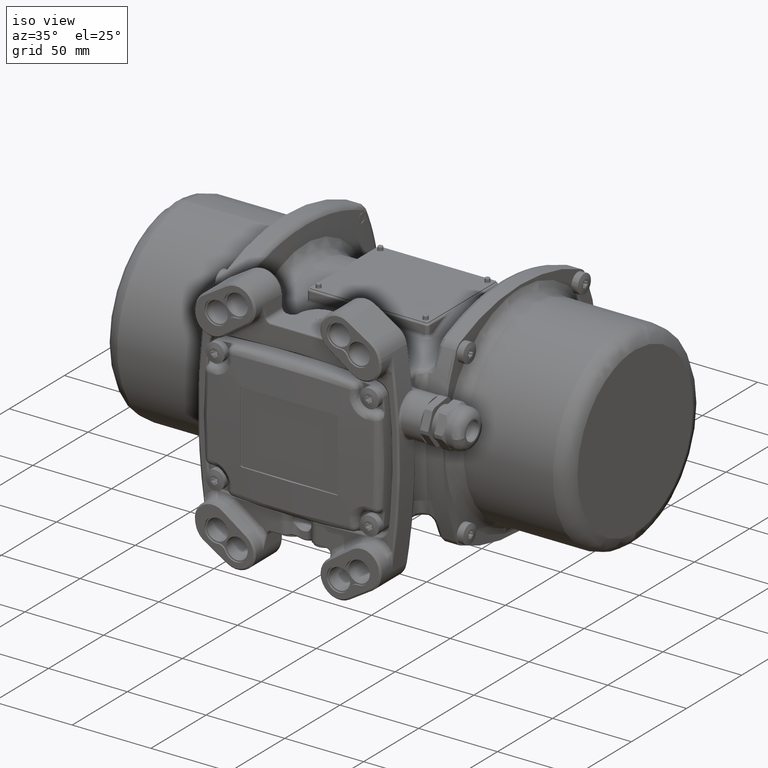
[diagram: clean part render]
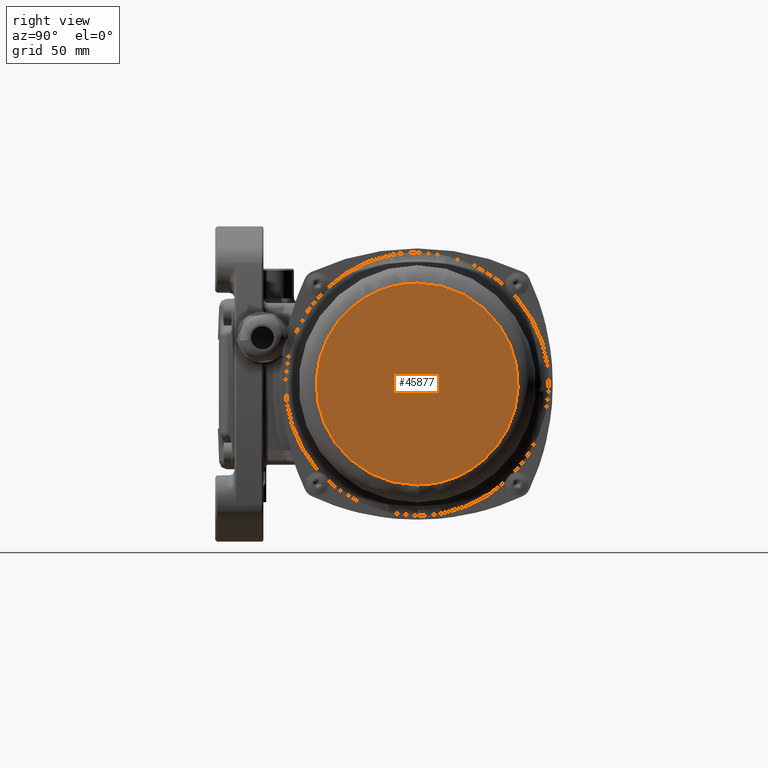
[diagram: tour spotlight — one face highlighted and labeled with its STEP entity id]
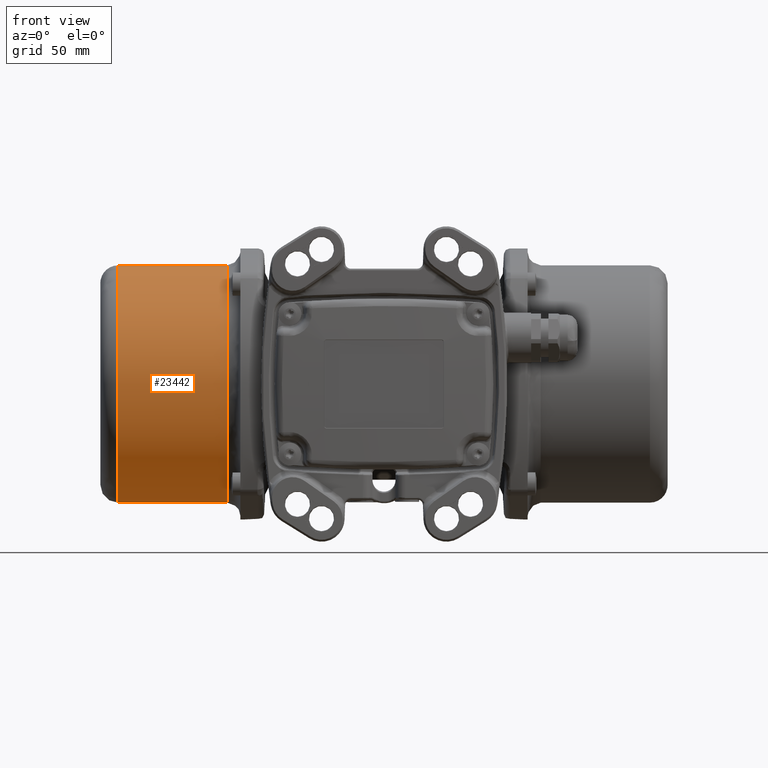
[diagram: tour spotlight — one face highlighted and labeled with its STEP entity id]
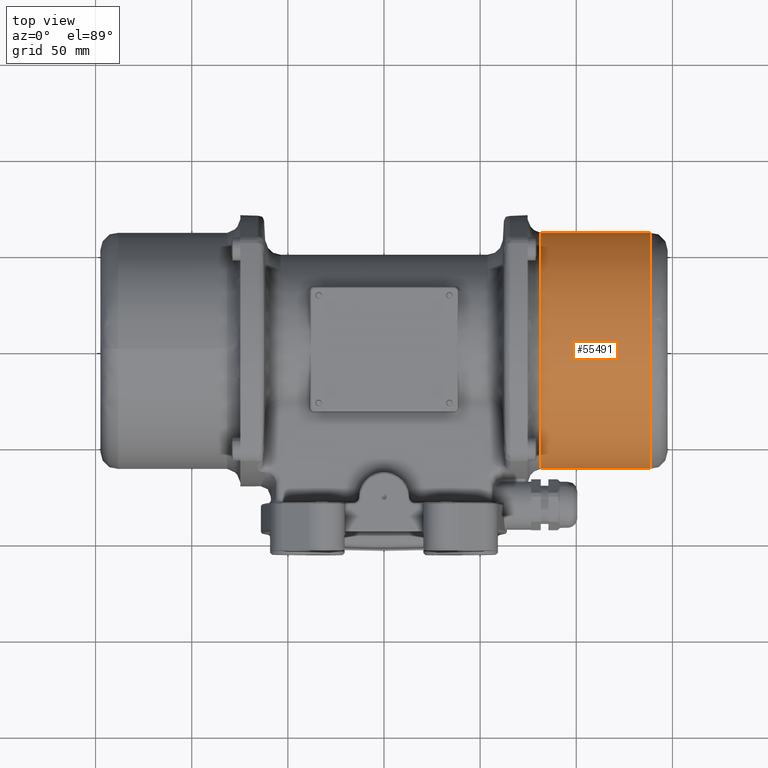
[diagram: tour spotlight — one face highlighted and labeled with its STEP entity id]
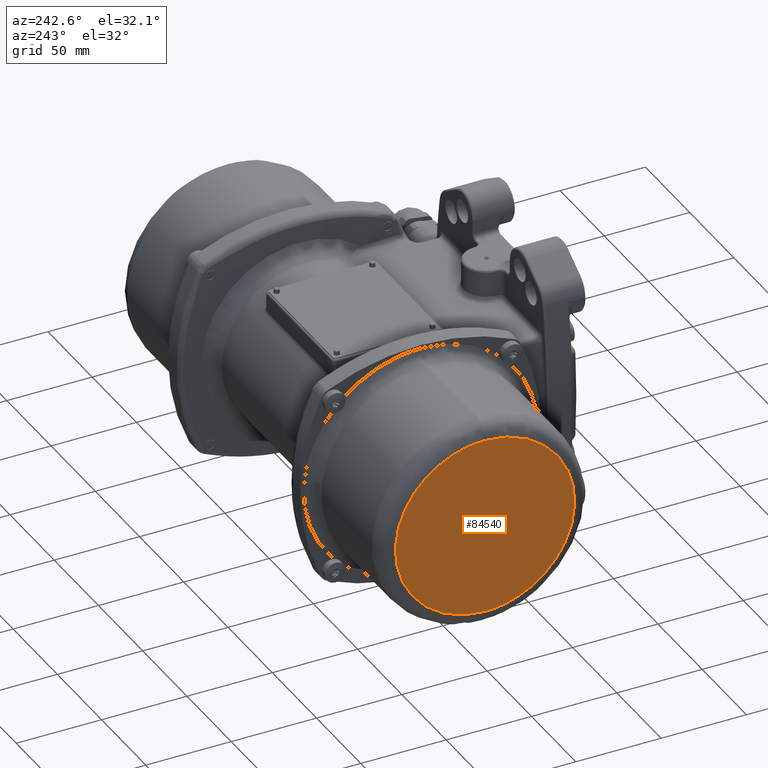
[diagram: tour spotlight — one face highlighted and labeled with its STEP entity id]
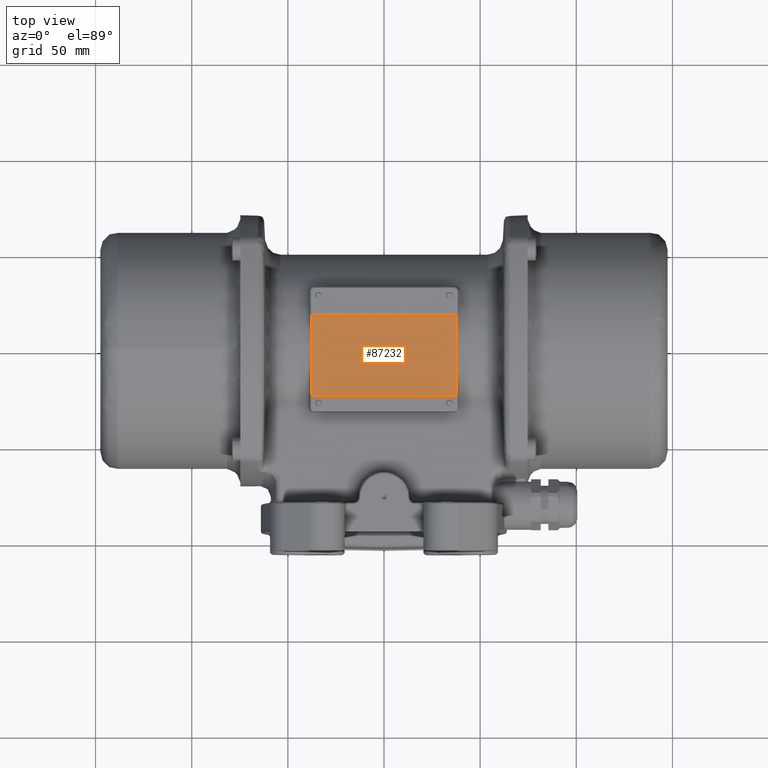
[diagram: tour spotlight — one face highlighted and labeled with its STEP entity id]
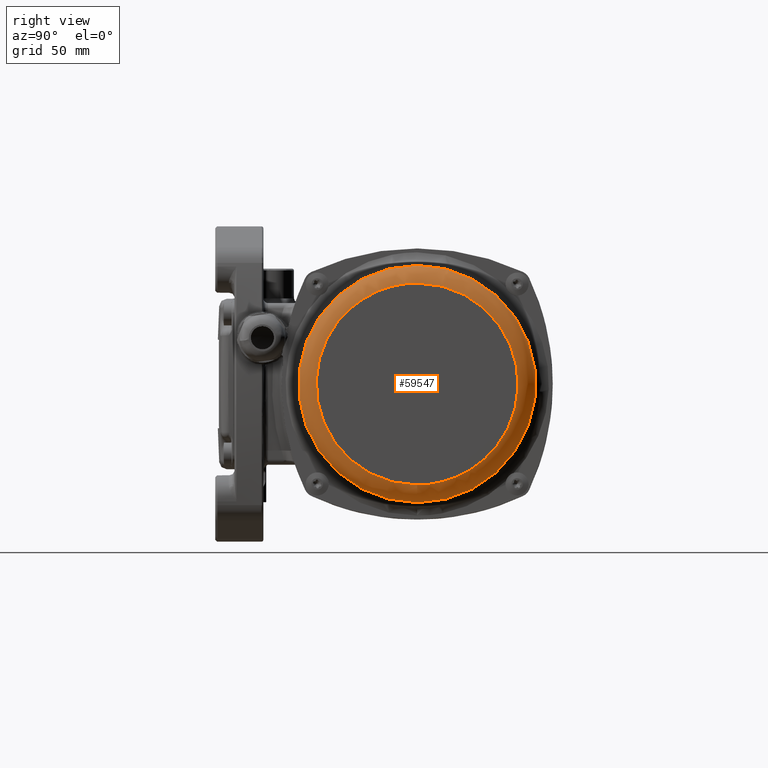
[diagram: tour spotlight — one face highlighted and labeled with its STEP entity id]
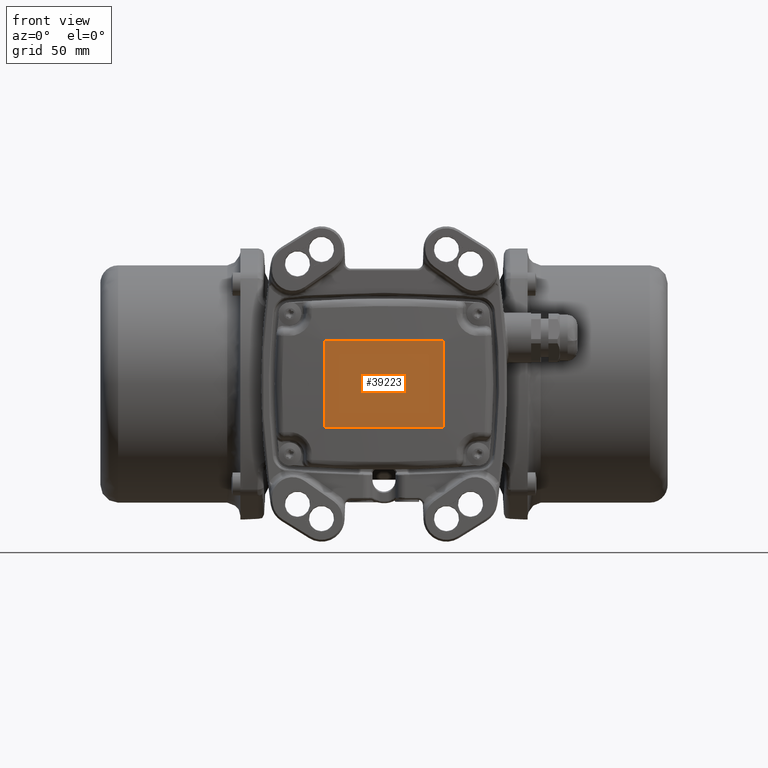
[diagram: tour spotlight — one face highlighted and labeled with its STEP entity id]
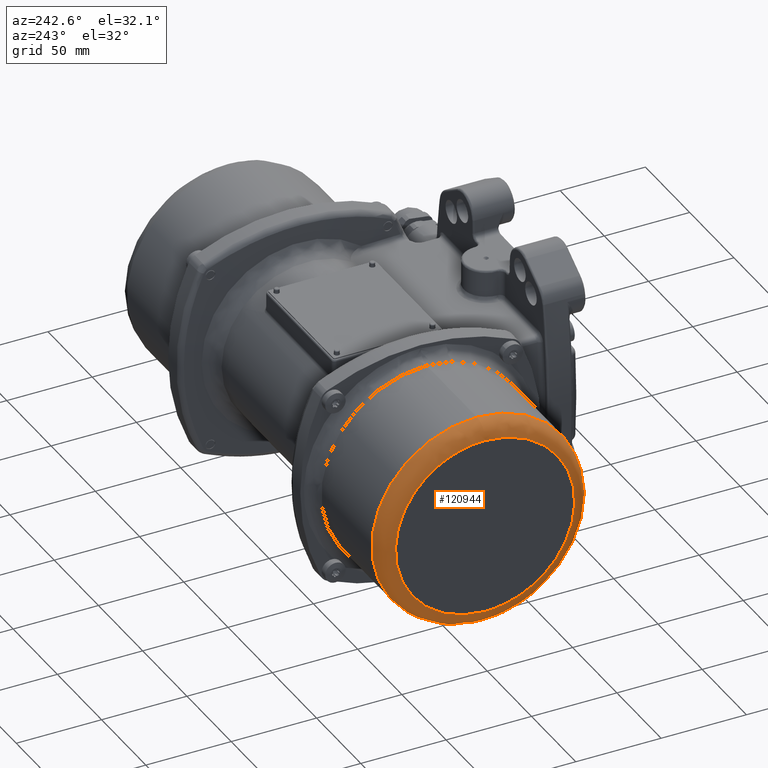
[diagram: tour spotlight — one face highlighted and labeled with its STEP entity id]
A machine part: a face-by-face anatomy tour. The part has 2618 B-rep faces; the first image is the clean iso view, then the 8 largest visible faces are spotlighted one at a time (largest first), each with its STEP entity span.

Face 1 — right view, entity #45877. In plain terms, the highlighted planar face has unit normal (-1, -0, 0).
Definition (entity closure, byte-faithful):
#2090 = VERTEX_POINT ( 'NONE', #56480 ) ;
#4143 = CARTESIAN_POINT ( 'NONE',  ( 147.5000000000000000, 2.362906042784019800E-013, -52.50000000000000000 ) ) ;
#10883 = CARTESIAN_POINT ( 'NONE',  ( 147.5000000000000300, -105.0000000000002300, 52.50000000000003600 ) ) ;
#19112 =( BOUNDED_CURVE ( )  B_SPLINE_CURVE ( 3, ( #58574, #78965, #56343, #4143 ),
 .UNSPECIFIED., .F., .F. ) 
 B_SPLINE_CURVE_WITH_KNOTS ( ( 4, 4 ),
 ( 0.0000000000000000000, 1.000000000000000000 ),
 .UNSPECIFIED. ) 
 CURVE ( )  GEOMETRIC_REPRESENTATION_ITEM ( )  RATIONAL_B_SPLINE_CURVE ( ( 1.000000000000000000, 0.3333333333333327600, 0.3333333333333327600, 1.000000000000000000 ) ) 
 REPRESENTATION_ITEM ( '' )  );
#29550 = CARTESIAN_POINT ( 'NONE',  ( 147.5000000000000000, 2.362906042784019800E-013, -52.50000000000000000 ) ) ;
#31509 = CARTESIAN_POINT ( 'NONE',  ( 147.5000000000000000, 2.686371778127085100E-013, -61.69999999999999600 ) ) ;
#32562 = EDGE_CURVE ( 'NONE', #2090, #137809, #19112, .T. ) ;
#45877 = ADVANCED_FACE ( 'NONE', ( #106169 ), #117512, .F. ) ;
#49664 = DIRECTION ( 'NONE',  ( 8.080001882628438800E-017, -4.239272200094885300E-015, 1.000000000000000000 ) ) ;
#54025 = CARTESIAN_POINT ( 'NONE',  ( 147.5000000000000300, -105.0000000000001100, -52.50000000000026300 ) ) ;
#56343 = CARTESIAN_POINT ( 'NONE',  ( 147.5000000000000300, 105.0000000000003600, -52.49999999999973700 ) ) ;
#56480 = CARTESIAN_POINT ( 'NONE',  ( 147.5000000000000000, -2.154877074381275000E-013, 52.50000000000000000 ) ) ;
#58574 = CARTESIAN_POINT ( 'NONE',  ( 147.5000000000000000, -2.154877074381275000E-013, 52.50000000000000000 ) ) ;
#78965 = CARTESIAN_POINT ( 'NONE',  ( 147.5000000000000300, 104.9999999999999700, 52.50000000000046200 ) ) ;
#79675 = ORIENTED_EDGE ( 'NONE', *, *, #32562, .F. ) ;
#87842 = CARTESIAN_POINT ( 'NONE',  ( 147.5000000000000000, 2.362906042784019800E-013, -52.50000000000000000 ) ) ;
#94825 = CARTESIAN_POINT ( 'NONE',  ( 147.5000000000000000, -2.154877074381275000E-013, 52.50000000000000000 ) ) ;
#97430 = EDGE_CURVE ( 'NONE', #137809, #2090, #107017, .T. ) ;
#106169 = FACE_OUTER_BOUND ( 'NONE', #110632, .T. ) ;
#107017 =( BOUNDED_CURVE ( )  B_SPLINE_CURVE ( 3, ( #87842, #54025, #10883, #94825 ),
 .UNSPECIFIED., .F., .F. ) 
 B_SPLINE_CURVE_WITH_KNOTS ( ( 4, 4 ),
 ( 0.0000000000000000000, 1.000000000000000000 ),
 .UNSPECIFIED. ) 
 CURVE ( )  GEOMETRIC_REPRESENTATION_ITEM ( )  RATIONAL_B_SPLINE_CURVE ( ( 1.000000000000000000, 0.3333333333333324800, 0.3333333333333324800, 1.000000000000000000 ) ) 
 REPRESENTATION_ITEM ( '' )  );
#110632 = EDGE_LOOP ( 'NONE', ( #79675, #131693 ) ) ;
#110701 = DIRECTION ( 'NONE',  ( -1.000000000000000000, -8.321743130936853100E-017, 8.080001882628403100E-017 ) ) ;
#117512 = PLANE ( 'NONE',  #126432 ) ;
#126432 = AXIS2_PLACEMENT_3D ( 'NONE', #31509, #110701, #49664 ) ;
#131693 = ORIENTED_EDGE ( 'NONE', *, *, #97430, .F. ) ;
#137809 = VERTEX_POINT ( 'NONE', #29550 ) ;

Face 2 — front view, entity #23442. In plain terms, the highlighted cylindrical surface (bore or boss wall) has radius 61.7 mm, axis along (-1, -0, 0).
Definition (entity closure, byte-faithful):
#6861 = FACE_OUTER_BOUND ( 'NONE', #12429, .T. ) ;
#12429 = EDGE_LOOP ( 'NONE', ( #33287 ) ) ;
#19979 = VERTEX_POINT ( 'NONE', #38147 ) ;
#23442 = ADVANCED_FACE ( 'NONE', ( #6861, #102015 ), #135866, .T. ) ;
#33287 = ORIENTED_EDGE ( 'NONE', *, *, #44586, .T. ) ;
#35071 = VERTEX_POINT ( 'NONE', #125609 ) ;
#38147 = CARTESIAN_POINT ( 'NONE',  ( -138.3000000000000100, -5.771336261299319100E-013, 61.69999999999966900 ) ) ;
#40472 = CIRCLE ( 'NONE', #84586, 61.69999999999999600 ) ;
#43898 = DIRECTION ( 'NONE',  ( 2.249236273551776100E-016, -3.059660236430655700E-015, 1.000000000000000000 ) ) ;
#44014 = DIRECTION ( 'NONE',  ( 0.0000000000000000000, -3.059660236430655700E-015, 1.000000000000000000 ) ) ;
#44586 = EDGE_CURVE ( 'NONE', #35071, #35071, #86572, .T. ) ;
#45564 = ORIENTED_EDGE ( 'NONE', *, *, #122253, .T. ) ;
#46334 = DIRECTION ( 'NONE',  ( 1.000000000000000000, 1.168599722595577800E-016, -1.170467909744575800E-016 ) ) ;
#70262 = DIRECTION ( 'NONE',  ( -1.000000000000000000, -1.168599722595577800E-016, 1.170467909744575800E-016 ) ) ;
#73353 = CARTESIAN_POINT ( 'NONE',  ( -81.50000000000000000, -3.817149431178180000E-013, -3.327893245835424800E-013 ) ) ;
#73992 = EDGE_LOOP ( 'NONE', ( #45564 ) ) ;
#79363 = DIRECTION ( 'NONE',  ( 0.0000000000000000000, -3.059660236430654900E-015, 1.000000000000000000 ) ) ;
#82461 = CARTESIAN_POINT ( 'NONE',  ( -138.3000000000000100, -3.883525895421604900E-013, -3.261410668561934900E-013 ) ) ;
#84442 = AXIS2_PLACEMENT_3D ( 'NONE', #131333, #70262, #79363 ) ;
#84586 = AXIS2_PLACEMENT_3D ( 'NONE', #82461, #46334, #44014 ) ;
#86572 = CIRCLE ( 'NONE', #104822, 61.69999999999999600 ) ;
#102015 = FACE_OUTER_BOUND ( 'NONE', #73992, .T. ) ;
#104822 = AXIS2_PLACEMENT_3D ( 'NONE', #73353, #104987, #43898 ) ;
#104987 = DIRECTION ( 'NONE',  ( -1.000000000000000000, -1.168599722595577800E-016, 1.170467909744575800E-016 ) ) ;
#122253 = EDGE_CURVE ( 'NONE', #19979, #19979, #40472, .T. ) ;
#125609 = CARTESIAN_POINT ( 'NONE',  ( -81.49999999999998600, -5.704959797055894200E-013, 61.69999999999966200 ) ) ;
#131333 = CARTESIAN_POINT ( 'NONE',  ( -147.5000000000000000, -3.894277012869485100E-013, -3.250642363792284800E-013 ) ) ;
#135866 = CYLINDRICAL_SURFACE ( 'NONE', #84442, 61.69999999999999600 ) ;

Face 3 — top view, entity #55491. In plain terms, the highlighted cylindrical surface (bore or boss wall) has radius 61.7 mm, axis along (1, 0, -0).
Definition (entity closure, byte-faithful):
#17226 = VERTEX_POINT ( 'NONE', #53572 ) ;
#18652 = CIRCLE ( 'NONE', #98361, 61.69999999999999600 ) ;
#20852 = EDGE_LOOP ( 'NONE', ( #97905 ) ) ;
#28974 = CARTESIAN_POINT ( 'NONE',  ( 138.3000000000000100, 6.308482698807859800E-015, 7.096470423407929400E-015 ) ) ;
#44246 = FACE_OUTER_BOUND ( 'NONE', #99784, .T. ) ;
#53572 = CARTESIAN_POINT ( 'NONE',  ( 138.3000000000000100, 2.678715774446622700E-013, -61.69999999999998900 ) ) ;
#55491 = ADVANCED_FACE ( 'NONE', ( #44246, #96322 ), #91861, .T. ) ;
#55572 = VERTEX_POINT ( 'NONE', #57924 ) ;
#57924 = CARTESIAN_POINT ( 'NONE',  ( 81.50000000000000000, 2.631448273462901200E-013, -61.69999999999998200 ) ) ;
#58126 = DIRECTION ( 'NONE',  ( 1.000000000000000000, 8.321743130936849400E-017, -7.386112492237709800E-017 ) ) ;
#60492 = EDGE_CURVE ( 'NONE', #55572, #55572, #116473, .T. ) ;
#66260 = AXIS2_PLACEMENT_3D ( 'NONE', #132672, #58126, #76170 ) ;
#66480 = AXIS2_PLACEMENT_3D ( 'NONE', #137053, #82791, #107630 ) ;
#76170 = DIRECTION ( 'NONE',  ( 0.0000000000000000000, 4.239272200094885300E-015, -1.000000000000000000 ) ) ;
#77618 = ORIENTED_EDGE ( 'NONE', *, *, #60492, .T. ) ;
#79087 = EDGE_CURVE ( 'NONE', #17226, #17226, #18652, .T. ) ;
#82791 = DIRECTION ( 'NONE',  ( 1.000000000000000000, 8.321743130936849400E-017, -7.386112492237709800E-017 ) ) ;
#85550 = DIRECTION ( 'NONE',  ( -1.000000000000000000, -8.321743130936849400E-017, 7.386112492237709800E-017 ) ) ;
#91861 = CYLINDRICAL_SURFACE ( 'NONE', #66480, 61.69999999999999600 ) ;
#96322 = FACE_OUTER_BOUND ( 'NONE', #20852, .T. ) ;
#97905 = ORIENTED_EDGE ( 'NONE', *, *, #79087, .T. ) ;
#98361 = AXIS2_PLACEMENT_3D ( 'NONE', #28974, #85550, #137287 ) ;
#99784 = EDGE_LOOP ( 'NONE', ( #77618 ) ) ;
#107630 = DIRECTION ( 'NONE',  ( 0.0000000000000000000, 4.239272200094885300E-015, -1.000000000000000000 ) ) ;
#116473 = CIRCLE ( 'NONE', #66260, 61.69999999999999600 ) ;
#132672 = CARTESIAN_POINT ( 'NONE',  ( 81.50000000000000000, 1.581732600435725000E-015, 1.129178231899894000E-014 ) ) ;
#137053 = CARTESIAN_POINT ( 'NONE',  ( 147.5000000000000000, 7.074083066854050500E-015, 6.416948074122060000E-015 ) ) ;
#137287 = DIRECTION ( 'NONE',  ( 0.0000000000000000000, 4.239272200094885300E-015, -1.000000000000000000 ) ) ;

Face 4 — auxiliary view, entity #84540. In plain terms, the highlighted planar face has unit normal (1, 0, -0).
Definition (entity closure, byte-faithful):
#7317 =( BOUNDED_CURVE ( )  B_SPLINE_CURVE ( 3, ( #68772, #7593, #66088, #86492 ),
 .UNSPECIFIED., .F., .F. ) 
 B_SPLINE_CURVE_WITH_KNOTS ( ( 4, 4 ),
 ( 0.0000000000000000000, 1.000000000000000000 ),
 .UNSPECIFIED. ) 
 CURVE ( )  GEOMETRIC_REPRESENTATION_ITEM ( )  RATIONAL_B_SPLINE_CURVE ( ( 1.000000000000000000, 0.3333333333333324800, 0.3333333333333324800, 1.000000000000000000 ) ) 
 REPRESENTATION_ITEM ( '' )  );
#7593 = CARTESIAN_POINT ( 'NONE',  ( -147.5000000000000300, -105.0000000000002400, 52.49999999999886300 ) ) ;
#10305 = EDGE_LOOP ( 'NONE', ( #133325, #77743 ) ) ;
#16234 = CARTESIAN_POINT ( 'NONE',  ( -147.5000000000000000, -2.287955388743390200E-013, -52.50000000000000000 ) ) ;
#17211 = FACE_OUTER_BOUND ( 'NONE', #10305, .T. ) ;
#30907 = PLANE ( 'NONE',  #77623 ) ;
#32158 = CARTESIAN_POINT ( 'NONE',  ( -147.5000000000000000, -5.434051329929910400E-013, 52.50000000000000000 ) ) ;
#44294 = EDGE_CURVE ( 'NONE', #91277, #77887, #137567, .T. ) ;
#49071 = CARTESIAN_POINT ( 'NONE',  ( -147.5000000000000000, -5.782087378747200800E-013, 61.69999999999999600 ) ) ;
#49570 = CARTESIAN_POINT ( 'NONE',  ( -147.5000000000000000, -2.287955388743390200E-013, -52.50000000000000000 ) ) ;
#63540 = CARTESIAN_POINT ( 'NONE',  ( -147.5000000000000000, -5.434051329929910400E-013, 52.50000000000000000 ) ) ;
#66080 = CARTESIAN_POINT ( 'NONE',  ( -147.5000000000000300, 104.9999999999989500, 52.49999999999985800 ) ) ;
#66088 = CARTESIAN_POINT ( 'NONE',  ( -147.5000000000000300, -104.9999999999996000, -52.50000000000080300 ) ) ;
#68772 = CARTESIAN_POINT ( 'NONE',  ( -147.5000000000000000, -5.434051329929910400E-013, 52.50000000000000000 ) ) ;
#77623 = AXIS2_PLACEMENT_3D ( 'NONE', #49071, #135064, #130556 ) ;
#77743 = ORIENTED_EDGE ( 'NONE', *, *, #93013, .F. ) ;
#77887 = VERTEX_POINT ( 'NONE', #63540 ) ;
#84540 = ADVANCED_FACE ( 'NONE', ( #17211 ), #30907, .F. ) ;
#86492 = CARTESIAN_POINT ( 'NONE',  ( -147.5000000000000000, -2.287955388743390200E-013, -52.50000000000000000 ) ) ;
#91277 = VERTEX_POINT ( 'NONE', #49570 ) ;
#93013 = EDGE_CURVE ( 'NONE', #77887, #91277, #7317, .T. ) ;
#127150 = CARTESIAN_POINT ( 'NONE',  ( -147.5000000000000300, 104.9999999999993500, -52.49999999999969400 ) ) ;
#130556 = DIRECTION ( 'NONE',  ( -1.239856848783649800E-016, 3.059660236430654900E-015, -1.000000000000000000 ) ) ;
#133325 = ORIENTED_EDGE ( 'NONE', *, *, #44294, .F. ) ;
#135064 = DIRECTION ( 'NONE',  ( 1.000000000000000000, 1.168599722595577800E-016, -1.239856848783646100E-016 ) ) ;
#137567 =( BOUNDED_CURVE ( )  B_SPLINE_CURVE ( 3, ( #16234, #127150, #66080, #32158 ),
 .UNSPECIFIED., .F., .F. ) 
 B_SPLINE_CURVE_WITH_KNOTS ( ( 4, 4 ),
 ( 0.0000000000000000000, 1.000000000000000000 ),
 .UNSPECIFIED. ) 
 CURVE ( )  GEOMETRIC_REPRESENTATION_ITEM ( )  RATIONAL_B_SPLINE_CURVE ( ( 1.000000000000000000, 0.3333333333333327600, 0.3333333333333327600, 1.000000000000000000 ) ) 
 REPRESENTATION_ITEM ( '' )  );

Face 5 — top view, entity #87232. In plain terms, the highlighted planar face has unit normal (0, 0, 1).
Definition (entity closure, byte-faithful):
#4205 = VECTOR ( 'NONE', #63712, 1000.000000000000000 ) ;
#6732 = DIRECTION ( 'NONE',  ( 0.0000000000000000000, 0.0000000000000000000, 1.000000000000000000 ) ) ;
#9206 = CARTESIAN_POINT ( 'NONE',  ( -37.50000000000000000, -24.29999999999999700, 50.50000000000000000 ) ) ;
#9281 = LINE ( 'NONE', #124767, #4205 ) ;
#14702 = CARTESIAN_POINT ( 'NONE',  ( 37.50000000000000000, -24.29999999999999700, 50.50000000000000000 ) ) ;
#18879 = CARTESIAN_POINT ( 'NONE',  ( -37.50000000000000000, 31.50000000000000000, 50.50000000000000000 ) ) ;
#19277 = VERTEX_POINT ( 'NONE', #49554 ) ;
#27144 = VECTOR ( 'NONE', #45503, 1000.000000000000000 ) ;
#27365 = LINE ( 'NONE', #9206, #27144 ) ;
#29322 = ORIENTED_EDGE ( 'NONE', *, *, #115206, .F. ) ;
#33917 = CARTESIAN_POINT ( 'NONE',  ( -37.50000000000000000, -31.50000000000000000, 50.50000000000000000 ) ) ;
#45251 = DIRECTION ( 'NONE',  ( 1.000000000000000000, 0.0000000000000000000, 0.0000000000000000000 ) ) ;
#45503 = DIRECTION ( 'NONE',  ( -1.000000000000000000, 2.312964634635745100E-017, 0.0000000000000000000 ) ) ;
#49554 = CARTESIAN_POINT ( 'NONE',  ( -37.50000000000000000, -24.29999999999999700, 50.50000000000000000 ) ) ;
#51385 = AXIS2_PLACEMENT_3D ( 'NONE', #33917, #6732, #45251 ) ;
#54347 = VERTEX_POINT ( 'NONE', #133980 ) ;
#57814 = CARTESIAN_POINT ( 'NONE',  ( 37.50000000000000000, 17.89999999999999900, 50.50000000000000000 ) ) ;
#61959 = LINE ( 'NONE', #18879, #110251 ) ;
#63712 = DIRECTION ( 'NONE',  ( 1.000000000000000000, 9.251858538542969100E-017, 0.0000000000000000000 ) ) ;
#64839 = EDGE_CURVE ( 'NONE', #54347, #88879, #9281, .T. ) ;
#65861 = ORIENTED_EDGE ( 'NONE', *, *, #90024, .T. ) ;
#81488 = PLANE ( 'NONE',  #51385 ) ;
#81858 = LINE ( 'NONE', #136405, #113084 ) ;
#87232 = ADVANCED_FACE ( 'NONE', ( #106128 ), #81488, .T. ) ;
#88879 = VERTEX_POINT ( 'NONE', #57814 ) ;
#90024 = EDGE_CURVE ( 'NONE', #54347, #19277, #61959, .T. ) ;
#92241 = ORIENTED_EDGE ( 'NONE', *, *, #92499, .T. ) ;
#92499 = EDGE_CURVE ( 'NONE', #97853, #88879, #81858, .T. ) ;
#97679 = DIRECTION ( 'NONE',  ( 1.101411730778923800E-016, 1.000000000000000000, 0.0000000000000000000 ) ) ;
#97853 = VERTEX_POINT ( 'NONE', #14702 ) ;
#106128 = FACE_OUTER_BOUND ( 'NONE', #117624, .T. ) ;
#110251 = VECTOR ( 'NONE', #113927, 1000.000000000000000 ) ;
#113084 = VECTOR ( 'NONE', #97679, 1000.000000000000000 ) ;
#113392 = ORIENTED_EDGE ( 'NONE', *, *, #64839, .F. ) ;
#113927 = DIRECTION ( 'NONE',  ( 1.101411730778923800E-016, -1.000000000000000000, 0.0000000000000000000 ) ) ;
#115206 = EDGE_CURVE ( 'NONE', #97853, #19277, #27365, .T. ) ;
#117624 = EDGE_LOOP ( 'NONE', ( #29322, #92241, #113392, #65861 ) ) ;
#124767 = CARTESIAN_POINT ( 'NONE',  ( 37.50000000000000000, 17.89999999999999900, 50.50000000000000000 ) ) ;
#133980 = CARTESIAN_POINT ( 'NONE',  ( -37.50000000000000000, 17.89999999999999900, 50.50000000000000000 ) ) ;
#136405 = CARTESIAN_POINT ( 'NONE',  ( 37.50000000000000000, 31.50000000000000000, 50.50000000000000000 ) ) ;

Face 6 — right view, entity #59547. In plain terms, the highlighted face is a freeform B-spline surface patch.
Definition (entity closure, byte-faithful):
#1764 = CARTESIAN_POINT ( 'NONE',  ( 147.5000000000000300, -105.0000000000002100, 52.49999999999956700 ) ) ;
#2090 = VERTEX_POINT ( 'NONE', #56480 ) ;
#4012 = CARTESIAN_POINT ( 'NONE',  ( 143.6892352261675400, -2.552548777122937100E-013, 61.69999999999999600 ) ) ;
#4143 = CARTESIAN_POINT ( 'NONE',  ( 147.5000000000000000, 2.362906042784019800E-013, -52.50000000000000000 ) ) ;
#8524 = FACE_OUTER_BOUND ( 'NONE', #51552, .T. ) ;
#10883 = CARTESIAN_POINT ( 'NONE',  ( 147.5000000000000300, -105.0000000000002300, 52.50000000000003600 ) ) ;
#17226 = VERTEX_POINT ( 'NONE', #53572 ) ;
#17541 = FACE_OUTER_BOUND ( 'NONE', #41944, .T. ) ;
#18652 = CIRCLE ( 'NONE', #98361, 61.69999999999999600 ) ;
#19112 =( BOUNDED_CURVE ( )  B_SPLINE_CURVE ( 3, ( #58574, #78965, #56343, #4143 ),
 .UNSPECIFIED., .F., .F. ) 
 B_SPLINE_CURVE_WITH_KNOTS ( ( 4, 4 ),
 ( 0.0000000000000000000, 1.000000000000000000 ),
 .UNSPECIFIED. ) 
 CURVE ( )  GEOMETRIC_REPRESENTATION_ITEM ( )  RATIONAL_B_SPLINE_CURVE ( ( 1.000000000000000000, 0.3333333333333327600, 0.3333333333333327600, 1.000000000000000000 ) ) 
 REPRESENTATION_ITEM ( '' )  );
#22126 = CARTESIAN_POINT ( 'NONE',  ( 147.5000000000000300, 104.9999999999997900, 52.50000000000044100 ) ) ;
#25345 =( BOUNDED_SURFACE ( )  B_SPLINE_SURFACE ( 3, 3, ( 
 ( #94577, #130782, #105899, #92237, #103592, #132996, #76490 ),
 ( #87792, #71957, #114923, #35695, #33477, #83277, #4012 ),
 ( #42481, #60649, #26672, #90013, #123991, #117251, #28912 ),
 ( #108114, #22126, #47061, #112690, #62956, #1764, #119489 ) ),
 .UNSPECIFIED., .F., .T., .F. ) 
 B_SPLINE_SURFACE_WITH_KNOTS ( ( 4, 4 ),
 ( 4, 3, 4 ),
 ( 0.0000000000000000000, 1.000000000000000000 ),
 ( 0.0000000000000000000, 0.5000000000000000000, 1.000000000000000000 ),
 .UNSPECIFIED. ) 
 GEOMETRIC_REPRESENTATION_ITEM ( )  RATIONAL_B_SPLINE_SURFACE ( (
 ( 1.000000000000000000, 0.3333333333333333100, 0.3333333333333333100, 1.000000000000000000, 0.3333333333333333100, 0.3333333333333333100, 1.000000000000000000),
 ( 0.8047378541243653800, 0.2682459513747884600, 0.2682459513747884600, 0.8047378541243653800, 0.2682459513747884600, 0.2682459513747884600, 0.8047378541243653800),
 ( 0.8047378541243653800, 0.2682459513747884600, 0.2682459513747884600, 0.8047378541243653800, 0.2682459513747884600, 0.2682459513747884600, 0.8047378541243653800),
 ( 1.000000000000000000, 0.3333333333333333100, 0.3333333333333333100, 1.000000000000000000, 0.3333333333333333100, 0.3333333333333333100, 1.000000000000000000) ) ) 
 REPRESENTATION_ITEM ( '' )  SURFACE ( )  );
#26672 = CARTESIAN_POINT ( 'NONE',  ( 147.5000000000000300, 115.7784704523353000, -57.88923522616704500 ) ) ;
#28912 = CARTESIAN_POINT ( 'NONE',  ( 147.5000000000000000, -2.391001963991827500E-013, 57.88923522616752800 ) ) ;
#28974 = CARTESIAN_POINT ( 'NONE',  ( 138.3000000000000100, 6.308482698807859800E-015, 7.096470423407929400E-015 ) ) ;
#29550 = CARTESIAN_POINT ( 'NONE',  ( 147.5000000000000000, 2.362906042784019800E-013, -52.50000000000000000 ) ) ;
#32562 = EDGE_CURVE ( 'NONE', #2090, #137809, #19112, .T. ) ;
#33477 = CARTESIAN_POINT ( 'NONE',  ( 143.6892352261675100, -123.3999999999997200, -61.70000000000051400 ) ) ;
#35695 = CARTESIAN_POINT ( 'NONE',  ( 143.6892352261675400, 2.687687997343967100E-013, -61.69999999999997400 ) ) ;
#41944 = EDGE_LOOP ( 'NONE', ( #84308 ) ) ;
#42481 = CARTESIAN_POINT ( 'NONE',  ( 147.5000000000000000, -2.391001963991827500E-013, 57.88923522616752800 ) ) ;
#47061 = CARTESIAN_POINT ( 'NONE',  ( 147.5000000000000300, 105.0000000000002100, -52.49999999999955200 ) ) ;
#51552 = EDGE_LOOP ( 'NONE', ( #104309, #104935 ) ) ;
#53572 = CARTESIAN_POINT ( 'NONE',  ( 138.3000000000000100, 2.678715774446622700E-013, -61.69999999999998900 ) ) ;
#54025 = CARTESIAN_POINT ( 'NONE',  ( 147.5000000000000300, -105.0000000000001100, -52.50000000000026300 ) ) ;
#56343 = CARTESIAN_POINT ( 'NONE',  ( 147.5000000000000300, 105.0000000000003600, -52.49999999999973700 ) ) ;
#56480 = CARTESIAN_POINT ( 'NONE',  ( 147.5000000000000000, -2.154877074381275000E-013, 52.50000000000000000 ) ) ;
#58574 = CARTESIAN_POINT ( 'NONE',  ( 147.5000000000000000, -2.154877074381275000E-013, 52.50000000000000000 ) ) ;
#59547 = ADVANCED_FACE ( 'NONE', ( #8524, #17541 ), #25345, .T. ) ;
#60649 = CARTESIAN_POINT ( 'NONE',  ( 147.5000000000000300, 115.7784704523348400, 57.88923522616802600 ) ) ;
#62956 = CARTESIAN_POINT ( 'NONE',  ( 147.5000000000000300, -104.9999999999997700, -52.50000000000044100 ) ) ;
#71957 = CARTESIAN_POINT ( 'NONE',  ( 143.6892352261675100, 123.3999999999997200, 61.70000000000052200 ) ) ;
#76490 = CARTESIAN_POINT ( 'NONE',  ( 138.3000000000000100, -2.552546120470464500E-013, 61.69999999999999600 ) ) ;
#78965 = CARTESIAN_POINT ( 'NONE',  ( 147.5000000000000300, 104.9999999999999700, 52.50000000000046200 ) ) ;
#79087 = EDGE_CURVE ( 'NONE', #17226, #17226, #18652, .T. ) ;
#83277 = CARTESIAN_POINT ( 'NONE',  ( 143.6892352261675100, -123.4000000000002300, 61.69999999999947700 ) ) ;
#84308 = ORIENTED_EDGE ( 'NONE', *, *, #79087, .F. ) ;
#85550 = DIRECTION ( 'NONE',  ( -1.000000000000000000, -8.321743130936849400E-017, 7.386112492237709800E-017 ) ) ;
#87792 = CARTESIAN_POINT ( 'NONE',  ( 143.6892352261675400, -2.552548777122937100E-013, 61.69999999999999600 ) ) ;
#87842 = CARTESIAN_POINT ( 'NONE',  ( 147.5000000000000000, 2.362906042784019800E-013, -52.50000000000000000 ) ) ;
#90013 = CARTESIAN_POINT ( 'NONE',  ( 147.5000000000000000, 2.532483625328909000E-013, -57.88923522616752100 ) ) ;
#92237 = CARTESIAN_POINT ( 'NONE',  ( 138.3000000000000100, 2.678715774446621700E-013, -61.69999999999998200 ) ) ;
#94577 = CARTESIAN_POINT ( 'NONE',  ( 138.3000000000000100, -2.552546120470464500E-013, 61.69999999999999600 ) ) ;
#94825 = CARTESIAN_POINT ( 'NONE',  ( 147.5000000000000000, -2.154877074381275000E-013, 52.50000000000000000 ) ) ;
#97430 = EDGE_CURVE ( 'NONE', #137809, #2090, #107017, .T. ) ;
#98361 = AXIS2_PLACEMENT_3D ( 'NONE', #28974, #85550, #137287 ) ;
#103592 = CARTESIAN_POINT ( 'NONE',  ( 138.3000000000000100, -123.3999999999997100, -61.70000000000050000 ) ) ;
#104309 = ORIENTED_EDGE ( 'NONE', *, *, #32562, .T. ) ;
#104935 = ORIENTED_EDGE ( 'NONE', *, *, #97430, .T. ) ;
#105899 = CARTESIAN_POINT ( 'NONE',  ( 138.3000000000000100, 123.4000000000002300, -61.69999999999945600 ) ) ;
#107017 =( BOUNDED_CURVE ( )  B_SPLINE_CURVE ( 3, ( #87842, #54025, #10883, #94825 ),
 .UNSPECIFIED., .F., .F. ) 
 B_SPLINE_CURVE_WITH_KNOTS ( ( 4, 4 ),
 ( 0.0000000000000000000, 1.000000000000000000 ),
 .UNSPECIFIED. ) 
 CURVE ( )  GEOMETRIC_REPRESENTATION_ITEM ( )  RATIONAL_B_SPLINE_CURVE ( ( 1.000000000000000000, 0.3333333333333324800, 0.3333333333333324800, 1.000000000000000000 ) ) 
 REPRESENTATION_ITEM ( '' )  );
#108114 = CARTESIAN_POINT ( 'NONE',  ( 147.5000000000000300, -2.162537613251187200E-013, 52.50000000000001400 ) ) ;
#112690 = CARTESIAN_POINT ( 'NONE',  ( 147.5000000000000300, 2.304019274588268400E-013, -52.50000000000000000 ) ) ;
#114923 = CARTESIAN_POINT ( 'NONE',  ( 143.6892352261675100, 123.4000000000002300, -61.69999999999946300 ) ) ;
#117251 = CARTESIAN_POINT ( 'NONE',  ( 147.5000000000000300, -115.7784704523353000, 57.88923522616705200 ) ) ;
#119489 = CARTESIAN_POINT ( 'NONE',  ( 147.5000000000000300, -2.162537613251187200E-013, 52.50000000000001400 ) ) ;
#123991 = CARTESIAN_POINT ( 'NONE',  ( 147.5000000000000300, -115.7784704523348400, -57.88923522616801900 ) ) ;
#130782 = CARTESIAN_POINT ( 'NONE',  ( 138.3000000000000100, 123.3999999999997200, 61.70000000000051400 ) ) ;
#132996 = CARTESIAN_POINT ( 'NONE',  ( 138.3000000000000100, -123.4000000000002300, 61.69999999999947000 ) ) ;
#137287 = DIRECTION ( 'NONE',  ( 0.0000000000000000000, 4.239272200094885300E-015, -1.000000000000000000 ) ) ;
#137809 = VERTEX_POINT ( 'NONE', #29550 ) ;

Face 7 — front view, entity #39223. In plain terms, the highlighted planar face has unit normal (-0, 1, 0).
Definition (entity closure, byte-faithful):
#699 = CARTESIAN_POINT ( 'NONE',  ( 30.00000000000000000, -102.5000000000000000, 22.80000000000000100 ) ) ;
#2489 = FACE_OUTER_BOUND ( 'NONE', #46524, .T. ) ;
#4545 = CARTESIAN_POINT ( 'NONE',  ( -30.39747818414603800, -102.5000000000000400, 22.70297599514658100 ) ) ;
#4758 = B_SPLINE_CURVE_WITH_KNOTS ( 'NONE', 3,
 ( #124092, #40369, #35895, #119588, #137647, #63049, #90101, #38151, #94677, #87887, #112778, #22222, #78916, #103795, #110530, #49490, #115124 ),
 .UNSPECIFIED., .F., .F.,
 ( 4, 1, 1, 2, 2, 2, 1, 2, 2, 4 ),
 ( 0.0000000000000000000, 0.1250000000000063300, 0.1875000000000137700, 0.2187500000000133200, 0.2500000000000128800, 0.5000000000000152100, 0.6250000000000164300, 0.6875000000000136600, 0.7500000000000109900, 1.000000000000000000 ),
 .UNSPECIFIED. ) ;
#6342 = CARTESIAN_POINT ( 'NONE',  ( 30.80000000000000100, -102.5000000000000000, -23.00000000000000000 ) ) ;
#9055 = CARTESIAN_POINT ( 'NONE',  ( 30.73446908099160200, -102.5000000000000100, -22.31816724614077800 ) ) ;
#11283 = CARTESIAN_POINT ( 'NONE',  ( 30.24697825969866800, -102.5000000000000100, -22.76109101683876200 ) ) ;
#11737 = CARTESIAN_POINT ( 'NONE',  ( 30.39312710280965000, -102.5000000000000100, 22.69745553741088900 ) ) ;
#11943 = VERTEX_POINT ( 'NONE', #123785 ) ;
#12090 = ORIENTED_EDGE ( 'NONE', *, *, #59163, .T. ) ;
#18174 = CARTESIAN_POINT ( 'NONE',  ( 30.12597897921749600, -102.4999999999999900, -22.79297883010623900 ) ) ;
#18621 = CARTESIAN_POINT ( 'NONE',  ( 30.74893747156319200, -102.5000000000000100, 22.28160046558707200 ) ) ;
#20892 = CARTESIAN_POINT ( 'NONE',  ( 30.64409138432517600, -102.5000000000000100, 22.48738494421447200 ) ) ;
#20902 = CARTESIAN_POINT ( 'NONE',  ( 30.80000000000001100, -102.5000000000000300, 22.05095400472179900 ) ) ;
#22222 = CARTESIAN_POINT ( 'NONE',  ( -30.39312710280976800, -102.5000000000000300, -22.69745553741127600 ) ) ;
#22668 = CARTESIAN_POINT ( 'NONE',  ( -30.73446908099155200, -102.5000000000000400, 22.31816724614052900 ) ) ;
#23170 = ORIENTED_EDGE ( 'NONE', *, *, #85596, .T. ) ;
#23201 = CARTESIAN_POINT ( 'NONE',  ( 30.00000000000000000, -102.5000000000000000, 22.80000000000000100 ) ) ;
#24887 = CARTESIAN_POINT ( 'NONE',  ( -30.00000000000000000, -102.5000000000000000, 22.80000000000000100 ) ) ;
#24965 = CARTESIAN_POINT ( 'NONE',  ( 30.00000000000000000, -102.5000000000000000, -22.80000000000000100 ) ) ;
#27208 = CARTESIAN_POINT ( 'NONE',  ( 30.60483566531686300, -102.4999999999999900, -22.52648244526102400 ) ) ;
#27673 = CARTESIAN_POINT ( 'NONE',  ( 30.70297599514401600, -102.4999999999999700, 22.39747818414896200 ) ) ;
#27700 = PLANE ( 'NONE',  #112373 ) ;
#29446 = CARTESIAN_POINT ( 'NONE',  ( -30.48738494421494500, -102.5000000000000600, 22.64409138432427700 ) ) ;
#32777 = EDGE_CURVE ( 'NONE', #103894, #11943, #55530, .T. ) ;
#34745 = B_SPLINE_CURVE_WITH_KNOTS ( 'NONE', 3,
 ( #82052, #20902, #93336, #100118, #38942, #61720, #18621, #27673, #20892, #36786, #72923, #11737, #90988, #127218, #100110, #93325, #23201 ),
 .UNSPECIFIED., .F., .F.,
 ( 4, 1, 1, 2, 2, 2, 1, 2, 2, 4 ),
 ( 0.0000000000000000000, 0.1250000000000172900, 0.1875000000000224800, 0.2187500000000197100, 0.2500000000000169300, 0.5000000000000063300, 0.6250000000000038900, 0.6874999999999993300, 0.7499999999999946700, 1.000000000000000000 ),
 .UNSPECIFIED. ) ;
#35741 = VERTEX_POINT ( 'NONE', #106109 ) ;
#35895 = CARTESIAN_POINT ( 'NONE',  ( -30.79297883010624300, -102.5000000000000100, -22.12597897921886400 ) ) ;
#36257 = CARTESIAN_POINT ( 'NONE',  ( -30.21104755910694100, -102.5000000000000300, 22.77250041791609900 ) ) ;
#36786 = CARTESIAN_POINT ( 'NONE',  ( 30.52648244526127600, -102.5000000000000300, 22.60483566531657500 ) ) ;
#38009 = EDGE_CURVE ( 'NONE', #74013, #50706, #76509, .T. ) ;
#38151 = CARTESIAN_POINT ( 'NONE',  ( -30.70297599514483600, -102.5000000000000300, -22.39747818414738800 ) ) ;
#38404 = VECTOR ( 'NONE', #139902, 1000.000000000000000 ) ;
#38589 = CARTESIAN_POINT ( 'NONE',  ( 30.65646649758014400, -102.4999999999999900, -22.46317900333239600 ) ) ;
#38942 = CARTESIAN_POINT ( 'NONE',  ( 30.76109101683876900, -102.5000000000000300, 22.24697825969956000 ) ) ;
#39030 = ORIENTED_EDGE ( 'NONE', *, *, #134360, .T. ) ;
#39223 = ADVANCED_FACE ( 'NONE', ( #2489 ), #27700, .F. ) ;
#40369 = CARTESIAN_POINT ( 'NONE',  ( -30.80000000000000100, -102.5000000000000300, -22.05095400472152200 ) ) ;
#40729 = CARTESIAN_POINT ( 'NONE',  ( -30.24697825969817800, -102.5000000000000300, 22.76109101683874100 ) ) ;
#43116 = CARTESIAN_POINT ( 'NONE',  ( 30.27081489071061100, -102.5000000000000300, -22.75289965196271400 ) ) ;
#45827 = DIRECTION ( 'NONE',  ( -2.504689895916395400E-016, 1.000000000000000000, 1.876269692640414900E-016 ) ) ;
#46524 = EDGE_LOOP ( 'NONE', ( #56350, #80712, #23170, #60379, #133461, #39030, #96368, #12090 ) ) ;
#49490 = CARTESIAN_POINT ( 'NONE',  ( -30.10155126446719700, -102.5000000000000100, -22.79999999999999400 ) ) ;
#49702 = VECTOR ( 'NONE', #94792, 1000.000000000000000 ) ;
#49839 = CARTESIAN_POINT ( 'NONE',  ( -30.60483566531633700, -102.5000000000000300, 22.52648244526168100 ) ) ;
#50706 = VERTEX_POINT ( 'NONE', #113047 ) ;
#54432 = CARTESIAN_POINT ( 'NONE',  ( -30.78127688028329700, -102.5000000000000100, 22.19970985368545200 ) ) ;
#55062 = CARTESIAN_POINT ( 'NONE',  ( -30.00000000000000000, -102.5000000000000000, 22.80000000000000100 ) ) ;
#55530 = B_SPLINE_CURVE_WITH_KNOTS ( 'NONE', 3,
 ( #24887, #90550, #101816, #36257, #40729, #115465, #95028, #4545, #29446, #49839, #65721, #70158, #83807, #22668, #54432, #58883, #137980 ),
 .UNSPECIFIED., .F., .F.,
 ( 4, 1, 1, 2, 2, 2, 1, 2, 2, 4 ),
 ( 0.0000000000000000000, 0.1250000000000256700, 0.1875000000000385200, 0.2187500000000407700, 0.2500000000000430200, 0.5000000000000276400, 0.6250000000000227600, 0.6875000000000203200, 0.7500000000000177600, 1.000000000000000000 ),
 .UNSPECIFIED. ) ;
#56350 = ORIENTED_EDGE ( 'NONE', *, *, #32777, .T. ) ;
#56730 = CARTESIAN_POINT ( 'NONE',  ( 30.80000000000000100, -102.5000000000000000, -22.10155126446787900 ) ) ;
#58883 = CARTESIAN_POINT ( 'NONE',  ( -30.79999999999999000, -102.5000000000000100, 22.10155126446894200 ) ) ;
#59163 = EDGE_CURVE ( 'NONE', #70347, #103894, #122795, .T. ) ;
#60379 = ORIENTED_EDGE ( 'NONE', *, *, #38009, .T. ) ;
#61720 = CARTESIAN_POINT ( 'NONE',  ( 30.75289965196272100, -102.5000000000000400, 22.27081489071110800 ) ) ;
#62137 = CARTESIAN_POINT ( 'NONE',  ( -30.80000000000000100, -102.5000000000000000, -22.00000000000000000 ) ) ;
#63049 = CARTESIAN_POINT ( 'NONE',  ( -30.75289965196268900, -102.5000000000000300, -22.27081489071097300 ) ) ;
#65721 = CARTESIAN_POINT ( 'NONE',  ( -30.65646649757927000, -102.5000000000000300, 22.46317900333356800 ) ) ;
#70158 = CARTESIAN_POINT ( 'NONE',  ( -30.69745553741055800, -102.5000000000000100, 22.39312710281022600 ) ) ;
#70249 = CARTESIAN_POINT ( 'NONE',  ( 30.48738494421399600, -102.4999999999999700, -22.64409138432566200 ) ) ;
#70347 = VERTEX_POINT ( 'NONE', #699 ) ;
#71061 = VERTEX_POINT ( 'NONE', #99731 ) ;
#71106 = EDGE_CURVE ( 'NONE', #35741, #70347, #34745, .T. ) ;
#72168 = LINE ( 'NONE', #97006, #49702 ) ;
#72923 = CARTESIAN_POINT ( 'NONE',  ( 30.46317900333282900, -102.5000000000000000, 22.65646649757968200 ) ) ;
#74013 = VERTEX_POINT ( 'NONE', #109826 ) ;
#74809 = CARTESIAN_POINT ( 'NONE',  ( 30.80000000000000100, -102.5000000000000000, -22.00000000000000000 ) ) ;
#76509 = LINE ( 'NONE', #83289, #128622 ) ;
#78916 = CARTESIAN_POINT ( 'NONE',  ( -30.34492617832878400, -102.5000000000000300, -22.72241672120263400 ) ) ;
#80712 = ORIENTED_EDGE ( 'NONE', *, *, #98673, .T. ) ;
#81590 = CARTESIAN_POINT ( 'NONE',  ( 30.05095400472076200, -102.5000000000000300, -22.80000000000000400 ) ) ;
#82052 = CARTESIAN_POINT ( 'NONE',  ( 30.80000000000000100, -102.5000000000000000, 22.00000000000000000 ) ) ;
#83289 = CARTESIAN_POINT ( 'NONE',  ( 31.00000000000000000, -102.5000000000000000, -22.80000000000000100 ) ) ;
#83807 = CARTESIAN_POINT ( 'NONE',  ( -30.72241672120217600, -102.5000000000000300, 22.34492617832907900 ) ) ;
#85596 = EDGE_CURVE ( 'NONE', #122276, #74013, #4758, .T. ) ;
#86104 = CARTESIAN_POINT ( 'NONE',  ( 30.69745553741126200, -102.4999999999999900, -22.39312710280931600 ) ) ;
#87887 = CARTESIAN_POINT ( 'NONE',  ( -30.52648244526134400, -102.5000000000000300, -22.60483566531685900 ) ) ;
#90101 = CARTESIAN_POINT ( 'NONE',  ( -30.74893747156304600, -102.5000000000000300, -22.28160046558726400 ) ) ;
#90550 = CARTESIAN_POINT ( 'NONE',  ( -30.05095400472016100, -102.5000000000000300, 22.80000000000000800 ) ) ;
#90988 = CARTESIAN_POINT ( 'NONE',  ( 30.34492617832870200, -102.5000000000000300, 22.72241672120238200 ) ) ;
#93325 = CARTESIAN_POINT ( 'NONE',  ( 30.10155126446861500, -102.5000000000000300, 22.80000000000000800 ) ) ;
#93336 = CARTESIAN_POINT ( 'NONE',  ( 30.79297883010623200, -102.5000000000000100, 22.12597897921933700 ) ) ;
#94677 = CARTESIAN_POINT ( 'NONE',  ( -30.64409138432493800, -102.5000000000000000, -22.48738494421397100 ) ) ;
#94792 = DIRECTION ( 'NONE',  ( -1.110223024625155900E-016, 2.292603326874849600E-016, -1.000000000000000000 ) ) ;
#95028 = CARTESIAN_POINT ( 'NONE',  ( -30.28160046558742700, -102.5000000000000300, 22.74893747156282600 ) ) ;
#96368 = ORIENTED_EDGE ( 'NONE', *, *, #71106, .T. ) ;
#97006 = CARTESIAN_POINT ( 'NONE',  ( -30.80000000000000100, -102.5000000000000000, -23.00000000000000000 ) ) ;
#97885 = CARTESIAN_POINT ( 'NONE',  ( 31.00000000000000000, -102.5000000000000000, 22.80000000000000100 ) ) ;
#98673 = EDGE_CURVE ( 'NONE', #11943, #122276, #72168, .T. ) ;
#99148 = LINE ( 'NONE', #6342, #38404 ) ;
#99657 = CARTESIAN_POINT ( 'NONE',  ( 30.28160046558725000, -102.5000000000000100, -22.74893747156300000 ) ) ;
#99731 = CARTESIAN_POINT ( 'NONE',  ( 30.80000000000000100, -102.5000000000000000, -22.00000000000000000 ) ) ;
#100110 = CARTESIAN_POINT ( 'NONE',  ( 30.19970985368511100, -102.5000000000000300, 22.78127688028330100 ) ) ;
#100118 = CARTESIAN_POINT ( 'NONE',  ( 30.77250041791612700, -102.5000000000000100, 22.21104755910910500 ) ) ;
#101816 = CARTESIAN_POINT ( 'NONE',  ( -30.12597897921647300, -102.5000000000000300, 22.79297883010624300 ) ) ;
#101916 = CARTESIAN_POINT ( 'NONE',  ( 30.39747818414746700, -102.5000000000000000, -22.70297599514549000 ) ) ;
#103795 = CARTESIAN_POINT ( 'NONE',  ( -30.31816724614095900, -102.5000000000000300, -22.73446908099159500 ) ) ;
#103894 = VERTEX_POINT ( 'NONE', #55062 ) ;
#104218 = CARTESIAN_POINT ( 'NONE',  ( 30.21104755910771900, -102.4999999999999700, -22.77250041791611300 ) ) ;
#104617 = EDGE_CURVE ( 'NONE', #50706, #71061, #135651, .T. ) ;
#106109 = CARTESIAN_POINT ( 'NONE',  ( 30.80000000000000100, -102.5000000000000000, 22.00000000000000000 ) ) ;
#106903 = CARTESIAN_POINT ( 'NONE',  ( 31.00000000000000000, -102.5000000000000000, -23.00000000000000000 ) ) ;
#109826 = CARTESIAN_POINT ( 'NONE',  ( -30.00000000000000000, -102.5000000000000000, -22.80000000000000100 ) ) ;
#110530 = CARTESIAN_POINT ( 'NONE',  ( -30.19970985368370000, -102.5000000000000100, -22.78127688028330100 ) ) ;
#111139 = DIRECTION ( 'NONE',  ( 1.000000000000000000, 2.504689895916395400E-016, -1.040834085586083900E-016 ) ) ;
#112373 = AXIS2_PLACEMENT_3D ( 'NONE', #106903, #45827, #111139 ) ;
#112778 = CARTESIAN_POINT ( 'NONE',  ( -30.46317900333296800, -102.5000000000000300, -22.65646649758017300 ) ) ;
#113047 = CARTESIAN_POINT ( 'NONE',  ( 30.00000000000000000, -102.5000000000000000, -22.80000000000000100 ) ) ;
#115124 = CARTESIAN_POINT ( 'NONE',  ( -30.00000000000000000, -102.5000000000000000, -22.80000000000000100 ) ) ;
#115465 = CARTESIAN_POINT ( 'NONE',  ( -30.27081489071032600, -102.5000000000000300, 22.75289965196268600 ) ) ;
#116326 = DIRECTION ( 'NONE',  ( -1.000000000000000000, -2.504689895916395400E-016, 1.040834085586083900E-016 ) ) ;
#119509 = DIRECTION ( 'NONE',  ( 1.000000000000000000, 2.504689895916395400E-016, -1.040834085586083900E-016 ) ) ;
#119588 = CARTESIAN_POINT ( 'NONE',  ( -30.77250041791609900, -102.5000000000000000, -22.21104755910873200 ) ) ;
#122276 = VERTEX_POINT ( 'NONE', #62137 ) ;
#122795 = LINE ( 'NONE', #97885, #127043 ) ;
#123785 = CARTESIAN_POINT ( 'NONE',  ( -30.80000000000000100, -102.5000000000000000, 22.00000000000000000 ) ) ;
#124092 = CARTESIAN_POINT ( 'NONE',  ( -30.80000000000000100, -102.5000000000000000, -22.00000000000000000 ) ) ;
#124540 = CARTESIAN_POINT ( 'NONE',  ( 30.72241672120263800, -102.5000000000000100, -22.34492617832847500 ) ) ;
#126775 = CARTESIAN_POINT ( 'NONE',  ( 30.78127688028331500, -102.5000000000000100, -22.19970985368437900 ) ) ;
#127043 = VECTOR ( 'NONE', #116326, 1000.000000000000000 ) ;
#127218 = CARTESIAN_POINT ( 'NONE',  ( 30.31816724614059700, -102.5000000000000100, 22.73446908099155200 ) ) ;
#128622 = VECTOR ( 'NONE', #119509, 1000.000000000000000 ) ;
#133461 = ORIENTED_EDGE ( 'NONE', *, *, #104617, .T. ) ;
#134360 = EDGE_CURVE ( 'NONE', #71061, #35741, #99148, .T. ) ;
#135651 = B_SPLINE_CURVE_WITH_KNOTS ( 'NONE', 3,
 ( #24965, #81590, #18174, #104218, #11283, #43116, #99657, #101916, #70249, #27208, #38589, #86104, #124540, #9055, #126775, #56730, #74809 ),
 .UNSPECIFIED., .F., .F.,
 ( 4, 1, 1, 2, 2, 2, 1, 2, 2, 4 ),
 ( 0.0000000000000000000, 0.1250000000000098000, 0.1875000000000138800, 0.2187500000000147400, 0.2500000000000155400, 0.5000000000000223200, 0.6250000000000256500, 0.6875000000000239800, 0.7500000000000223200, 1.000000000000000000 ),
 .UNSPECIFIED. ) ;
#137647 = CARTESIAN_POINT ( 'NONE',  ( -30.76109101683874400, -102.5000000000000300, -22.24697825969933300 ) ) ;
#137980 = CARTESIAN_POINT ( 'NONE',  ( -30.80000000000000100, -102.5000000000000000, 22.00000000000000000 ) ) ;
#139902 = DIRECTION ( 'NONE',  ( 1.110223024625155900E-016, -2.292603326874849600E-016, 1.000000000000000000 ) ) ;

Face 8 — auxiliary view, entity #120944. In plain terms, the highlighted face is a freeform B-spline surface patch.
Definition (entity closure, byte-faithful):
#2634 = ORIENTED_EDGE ( 'NONE', *, *, #44294, .T. ) ;
#7317 =( BOUNDED_CURVE ( )  B_SPLINE_CURVE ( 3, ( #68772, #7593, #66088, #86492 ),
 .UNSPECIFIED., .F., .F. ) 
 B_SPLINE_CURVE_WITH_KNOTS ( ( 4, 4 ),
 ( 0.0000000000000000000, 1.000000000000000000 ),
 .UNSPECIFIED. ) 
 CURVE ( )  GEOMETRIC_REPRESENTATION_ITEM ( )  RATIONAL_B_SPLINE_CURVE ( ( 1.000000000000000000, 0.3333333333333324800, 0.3333333333333324800, 1.000000000000000000 ) ) 
 REPRESENTATION_ITEM ( '' )  );
#7593 = CARTESIAN_POINT ( 'NONE',  ( -147.5000000000000300, -105.0000000000002400, 52.49999999999886300 ) ) ;
#13438 = CARTESIAN_POINT ( 'NONE',  ( -138.2999999999999800, -123.3999999999995400, -61.70000000000036500 ) ) ;
#16234 = CARTESIAN_POINT ( 'NONE',  ( -147.5000000000000000, -2.287955388743390200E-013, -52.50000000000000000 ) ) ;
#17907 = CARTESIAN_POINT ( 'NONE',  ( -147.5000000000000000, -2.115402562610718900E-013, -57.88923522616752800 ) ) ;
#18010 = CARTESIAN_POINT ( 'NONE',  ( -143.6892352261675400, -1.997525948559287300E-013, -61.69999999999999600 ) ) ;
#19979 = VERTEX_POINT ( 'NONE', #38147 ) ;
#24790 = CARTESIAN_POINT ( 'NONE',  ( -147.5000000000000000, -5.673151463128248300E-013, 57.88923522616688900 ) ) ;
#29262 = CARTESIAN_POINT ( 'NONE',  ( -138.3000000000000100, -1.995715529543894700E-013, -61.69999999999999600 ) ) ;
#32158 = CARTESIAN_POINT ( 'NONE',  ( -147.5000000000000000, -5.434051329929910400E-013, 52.50000000000000000 ) ) ;
#36072 = CARTESIAN_POINT ( 'NONE',  ( -143.6892352261675100, 123.3999999999987700, 61.69999999999973300 ) ) ;
#38147 = CARTESIAN_POINT ( 'NONE',  ( -138.3000000000000100, -5.771336261299319100E-013, 61.69999999999966900 ) ) ;
#40472 = CIRCLE ( 'NONE', #84586, 61.69999999999999600 ) ;
#40639 = CARTESIAN_POINT ( 'NONE',  ( -138.3000000000000100, 123.3999999999987700, 61.69999999999972600 ) ) ;
#42950 = CARTESIAN_POINT ( 'NONE',  ( -147.5000000000000300, -2.280294849873480100E-013, -52.50000000000001400 ) ) ;
#44014 = DIRECTION ( 'NONE',  ( 0.0000000000000000000, -3.059660236430655700E-015, 1.000000000000000000 ) ) ;
#44294 = EDGE_CURVE ( 'NONE', #91277, #77887, #137567, .T. ) ;
#45182 = CARTESIAN_POINT ( 'NONE',  ( -143.6892352261674500, -123.3999999999999300, 61.69999999999897300 ) ) ;
#45468 = ORIENTED_EDGE ( 'NONE', *, *, #93013, .T. ) ;
#46334 = DIRECTION ( 'NONE',  ( 1.000000000000000000, 1.168599722595577800E-016, -1.170467909744575800E-016 ) ) ;
#49570 = CARTESIAN_POINT ( 'NONE',  ( -147.5000000000000000, -2.287955388743390200E-013, -52.50000000000000000 ) ) ;
#49753 = CARTESIAN_POINT ( 'NONE',  ( -138.3000000000000100, -1.995715529543894700E-013, -61.69999999999999600 ) ) ;
#51142 = ORIENTED_EDGE ( 'NONE', *, *, #122253, .F. ) ;
#58803 = CARTESIAN_POINT ( 'NONE',  ( -147.5000000000000300, 115.7784704523341900, -57.88923522616718000 ) ) ;
#61092 = CARTESIAN_POINT ( 'NONE',  ( -147.5000000000000300, -5.508259175865487100E-013, 52.49999999999936100 ) ) ;
#63540 = CARTESIAN_POINT ( 'NONE',  ( -147.5000000000000000, -5.434051329929910400E-013, 52.50000000000000000 ) ) ;
#65538 = CARTESIAN_POINT ( 'NONE',  ( -147.5000000000000300, -2.280294849873480100E-013, -52.50000000000001400 ) ) ;
#66080 = CARTESIAN_POINT ( 'NONE',  ( -147.5000000000000300, 104.9999999999989500, 52.49999999999985800 ) ) ;
#66088 = CARTESIAN_POINT ( 'NONE',  ( -147.5000000000000300, -104.9999999999996000, -52.50000000000080300 ) ) ;
#67833 = CARTESIAN_POINT ( 'NONE',  ( -143.6892352261674800, -123.3999999999995400, -61.70000000000037900 ) ) ;
#68772 = CARTESIAN_POINT ( 'NONE',  ( -147.5000000000000000, -5.434051329929910400E-013, 52.50000000000000000 ) ) ;
#74632 = CARTESIAN_POINT ( 'NONE',  ( -138.3000000000000400, 123.3999999999991500, -61.69999999999961900 ) ) ;
#77274 = EDGE_LOOP ( 'NONE', ( #51142 ) ) ;
#77887 = VERTEX_POINT ( 'NONE', #63540 ) ;
#79174 = CARTESIAN_POINT ( 'NONE',  ( -147.5000000000000300, 115.7784704523338300, 57.88923522616724400 ) ) ;
#82461 = CARTESIAN_POINT ( 'NONE',  ( -138.3000000000000100, -3.883525895421604900E-013, -3.261410668561934900E-013 ) ) ;
#84586 = AXIS2_PLACEMENT_3D ( 'NONE', #82461, #46334, #44014 ) ;
#85937 = CARTESIAN_POINT ( 'NONE',  ( -147.5000000000000000, -2.115402562610718900E-013, -57.88923522616752800 ) ) ;
#86492 = CARTESIAN_POINT ( 'NONE',  ( -147.5000000000000000, -2.287955388743390200E-013, -52.50000000000000000 ) ) ;
#90367 = CARTESIAN_POINT ( 'NONE',  ( -147.5000000000000300, -115.7784704523346700, -57.88923522616790500 ) ) ;
#91277 = VERTEX_POINT ( 'NONE', #49570 ) ;
#92606 = FACE_OUTER_BOUND ( 'NONE', #77274, .T. ) ;
#92701 = CARTESIAN_POINT ( 'NONE',  ( -143.6892352261675400, 123.3999999999991400, -61.69999999999961200 ) ) ;
#93013 = EDGE_CURVE ( 'NONE', #77887, #91277, #7317, .T. ) ;
#97151 = CARTESIAN_POINT ( 'NONE',  ( -147.5000000000000300, -104.9999999999999400, 52.49999999999903400 ) ) ;
#101721 = CARTESIAN_POINT ( 'NONE',  ( -138.2999999999999800, -5.771336261299314000E-013, 61.69999999999934900 ) ) ;
#103168 =( BOUNDED_SURFACE ( )  B_SPLINE_SURFACE ( 3, 3, ( 
 ( #49753, #74632, #40639, #101721, #124349, #13438, #29262 ),
 ( #18010, #92701, #36072, #119844, #45182, #67833, #126594 ),
 ( #85937, #58803, #79174, #24790, #104048, #90367, #17907 ),
 ( #42950, #122154, #133341, #61092, #97151, #140200, #65538 ) ),
 .UNSPECIFIED., .F., .T., .F. ) 
 B_SPLINE_SURFACE_WITH_KNOTS ( ( 4, 4 ),
 ( 4, 3, 4 ),
 ( 0.0000000000000000000, 1.000000000000000000 ),
 ( 0.0000000000000000000, 0.5000000000000000000, 1.000000000000000000 ),
 .UNSPECIFIED. ) 
 GEOMETRIC_REPRESENTATION_ITEM ( )  RATIONAL_B_SPLINE_SURFACE ( (
 ( 1.000000000000000000, 0.3333333333333333100, 0.3333333333333333100, 1.000000000000000000, 0.3333333333333333100, 0.3333333333333333100, 1.000000000000000000),
 ( 0.8047378541243653800, 0.2682459513747884600, 0.2682459513747884600, 0.8047378541243653800, 0.2682459513747884600, 0.2682459513747884600, 0.8047378541243653800),
 ( 0.8047378541243653800, 0.2682459513747884600, 0.2682459513747884600, 0.8047378541243653800, 0.2682459513747884600, 0.2682459513747884600, 0.8047378541243653800),
 ( 1.000000000000000000, 0.3333333333333333100, 0.3333333333333333100, 1.000000000000000000, 0.3333333333333333100, 0.3333333333333333100, 1.000000000000000000) ) ) 
 REPRESENTATION_ITEM ( '' )  SURFACE ( )  );
#104048 = CARTESIAN_POINT ( 'NONE',  ( -147.5000000000000300, -115.7784704523350300, 57.88923522616652700 ) ) ;
#115180 = FACE_OUTER_BOUND ( 'NONE', #126181, .T. ) ;
#119844 = CARTESIAN_POINT ( 'NONE',  ( -143.6892352261675100, -5.782121559864523500E-013, 61.69999999999933500 ) ) ;
#120944 = ADVANCED_FACE ( 'NONE', ( #115180, #92606 ), #103168, .T. ) ;
#122154 = CARTESIAN_POINT ( 'NONE',  ( -147.5000000000000300, 104.9999999999991300, -52.49999999999968000 ) ) ;
#122253 = EDGE_CURVE ( 'NONE', #19979, #19979, #40472, .T. ) ;
#124349 = CARTESIAN_POINT ( 'NONE',  ( -138.2999999999999500, -123.3999999999999200, 61.69999999999898000 ) ) ;
#126181 = EDGE_LOOP ( 'NONE', ( #2634, #45468 ) ) ;
#126594 = CARTESIAN_POINT ( 'NONE',  ( -143.6892352261675400, -1.997525948559287300E-013, -61.69999999999999600 ) ) ;
#127150 = CARTESIAN_POINT ( 'NONE',  ( -147.5000000000000300, 104.9999999999993500, -52.49999999999969400 ) ) ;
#133341 = CARTESIAN_POINT ( 'NONE',  ( -147.5000000000000300, 104.9999999999988100, 52.49999999999968000 ) ) ;
#137567 =( BOUNDED_CURVE ( )  B_SPLINE_CURVE ( 3, ( #16234, #127150, #66080, #32158 ),
 .UNSPECIFIED., .F., .F. ) 
 B_SPLINE_CURVE_WITH_KNOTS ( ( 4, 4 ),
 ( 0.0000000000000000000, 1.000000000000000000 ),
 .UNSPECIFIED. ) 
 CURVE ( )  GEOMETRIC_REPRESENTATION_ITEM ( )  RATIONAL_B_SPLINE_CURVE ( ( 1.000000000000000000, 0.3333333333333327600, 0.3333333333333327600, 1.000000000000000000 ) ) 
 REPRESENTATION_ITEM ( '' )  );
#140200 = CARTESIAN_POINT ( 'NONE',  ( -147.5000000000000300, -104.9999999999996000, -52.50000000000034100 ) ) ;